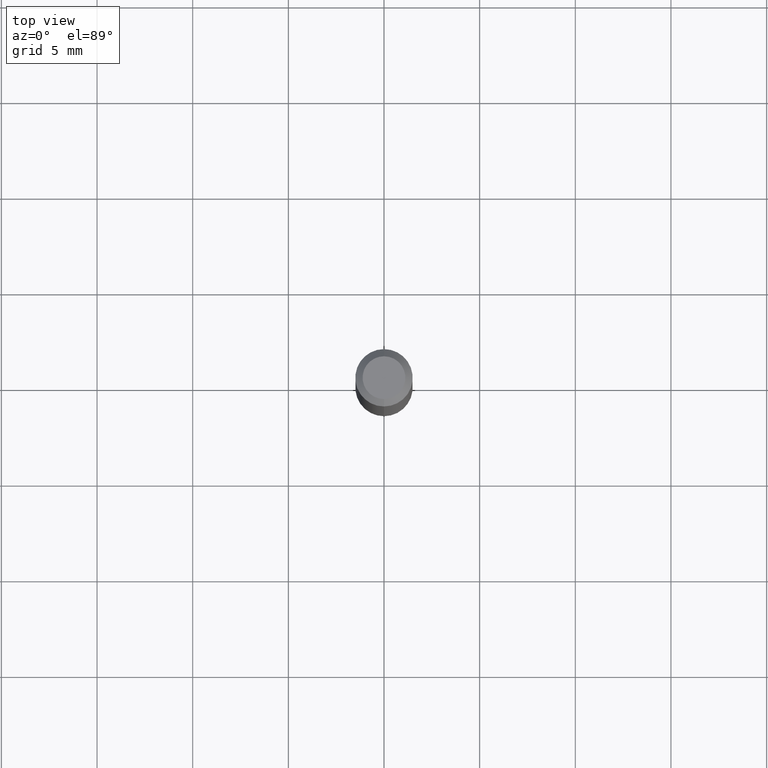
[diagram: clean part render]
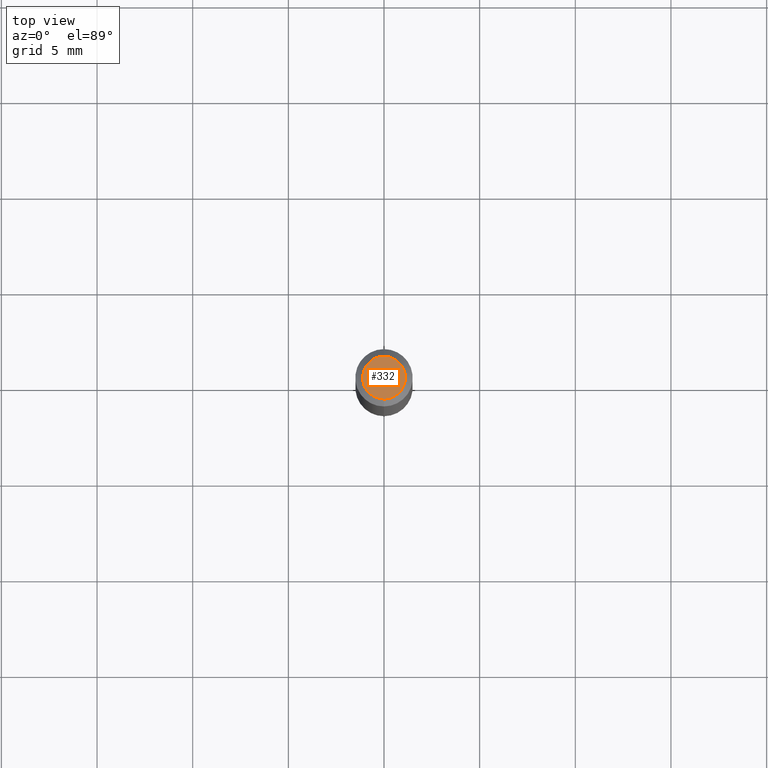
[diagram: same view with one face highlighted and labeled with its STEP entity id]
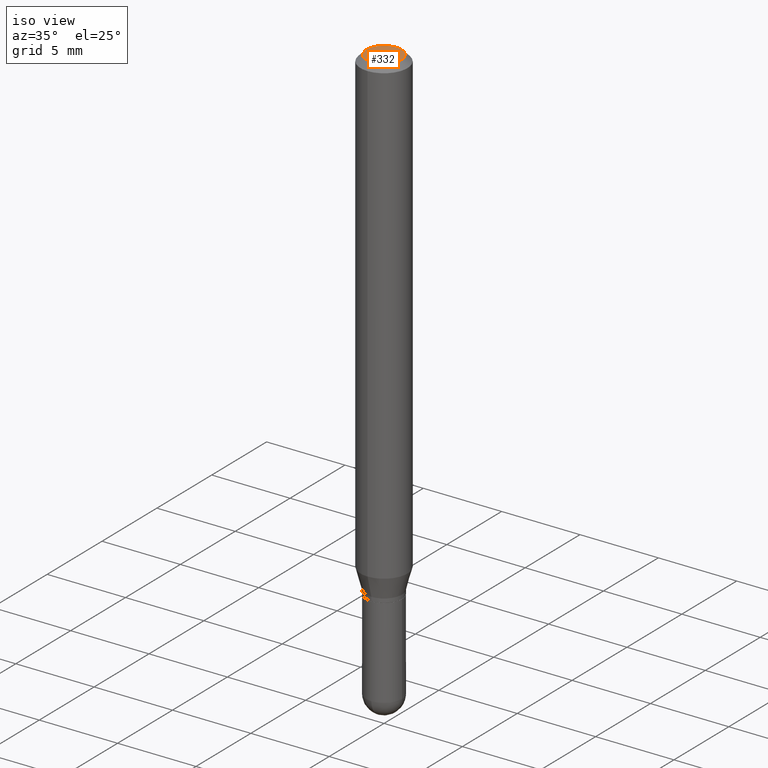
[diagram: same view with one face highlighted and labeled with its STEP entity id]
A machine part, top view. The second image highlights one B-rep face of the part: STEP entity #332.
A second angle (iso view) of the same face is appended — the face is thin or edge-on in the first view.
In plain terms, the highlighted planar face has unit normal (0, -0, -1).
Its self-contained STEP definition (entity closure, byte-faithful):
#61 = CARTESIAN_POINT ( 'NONE',  ( 2.241714443500564891E-45, -3.200488794638741084E-31, -9.166686589144350566E-17 ) ) ;
#94 = PLANE ( 'NONE',  #496 ) ;
#109 = EDGE_CURVE ( 'NONE', #260, #474, #510, .T. ) ;
#117 = CARTESIAN_POINT ( 'NONE',  ( 3.599717260347271507E-16, 0.04404999999999999888, -2.454645658922200893E-16 ) ) ;
#162 = EDGE_CURVE ( 'NONE', #474, #260, #254, .T. ) ;
#233 = AXIS2_PLACEMENT_3D ( 'NONE', #61, #494, #300 ) ;
#237 = CARTESIAN_POINT ( 'NONE',  ( 3.075995059520799729E-16, 0.04404999999999999888, -1.996311329464983981E-16 ) ) ;
#244 = EDGE_LOOP ( 'NONE', ( #278, #499 ) ) ;
#254 = CIRCLE ( 'NONE', #340, 0.04404999999999999888 ) ;
#260 = VERTEX_POINT ( 'NONE', #117 ) ;
#278 = ORIENTED_EDGE ( 'NONE', *, *, #109, .T. ) ;
#289 = CARTESIAN_POINT ( 'NONE',  ( -3.536586717851222218E-16, -0.04404999999999999888, 6.213083410933312730E-17 ) ) ;
#300 = DIRECTION ( 'NONE',  ( -6.982962677686265133E-15, -1.000000000000000000, 3.491434733275292451E-15 ) ) ;
#332 = ADVANCED_FACE ( 'NONE', ( #489 ), #94, .F. ) ;
#340 = AXIS2_PLACEMENT_3D ( 'NONE', #381, #346, #490 ) ;
#346 = DIRECTION ( 'NONE',  ( -2.445501350679225311E-29, 3.491434733275292845E-15, 1.000000000000000000 ) ) ;
#368 = DIRECTION ( 'NONE',  ( 6.982962677686265922E-15, 1.000000000000000000, -3.491434733275292845E-15 ) ) ;
#381 = CARTESIAN_POINT ( 'NONE',  ( 2.241714443500564891E-45, -3.200488794638741084E-31, -9.166686589144350566E-17 ) ) ;
#474 = VERTEX_POINT ( 'NONE', #289 ) ;
#485 = DIRECTION ( 'NONE',  ( 2.445501350679225031E-29, -3.491434733275292845E-15, -1.000000000000000000 ) ) ;
#489 = FACE_OUTER_BOUND ( 'NONE', #244, .T. ) ;
#490 = DIRECTION ( 'NONE',  ( -6.982962677686265133E-15, -1.000000000000000000, 3.491434733275292451E-15 ) ) ;
#494 = DIRECTION ( 'NONE',  ( -2.445501350679225311E-29, 3.491434733275292845E-15, 1.000000000000000000 ) ) ;
#496 = AXIS2_PLACEMENT_3D ( 'NONE', #237, #485, #368 ) ;
#499 = ORIENTED_EDGE ( 'NONE', *, *, #162, .T. ) ;
#510 = CIRCLE ( 'NONE', #233, 0.04404999999999999888 ) ;